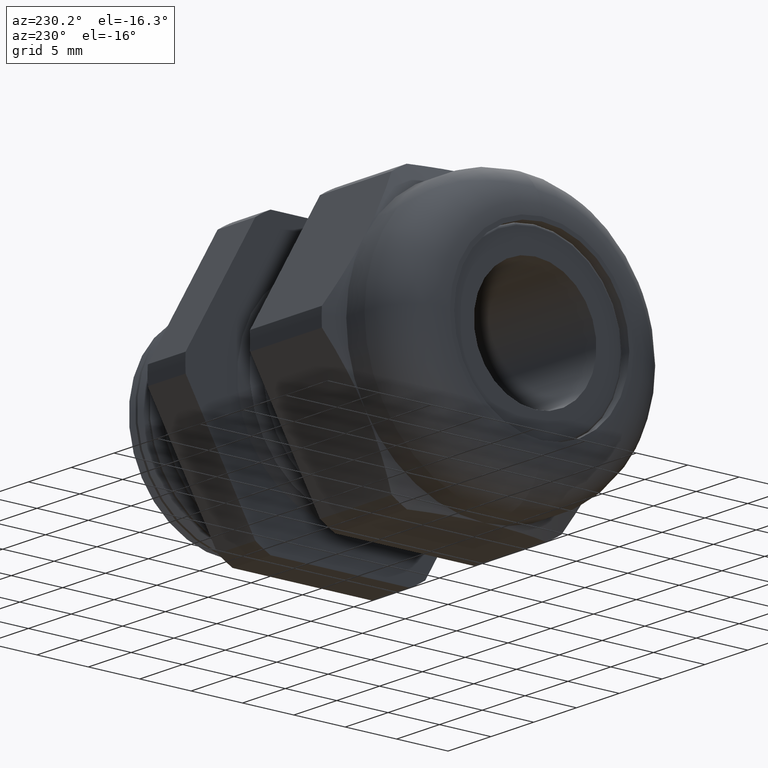
[diagram: clean part render]
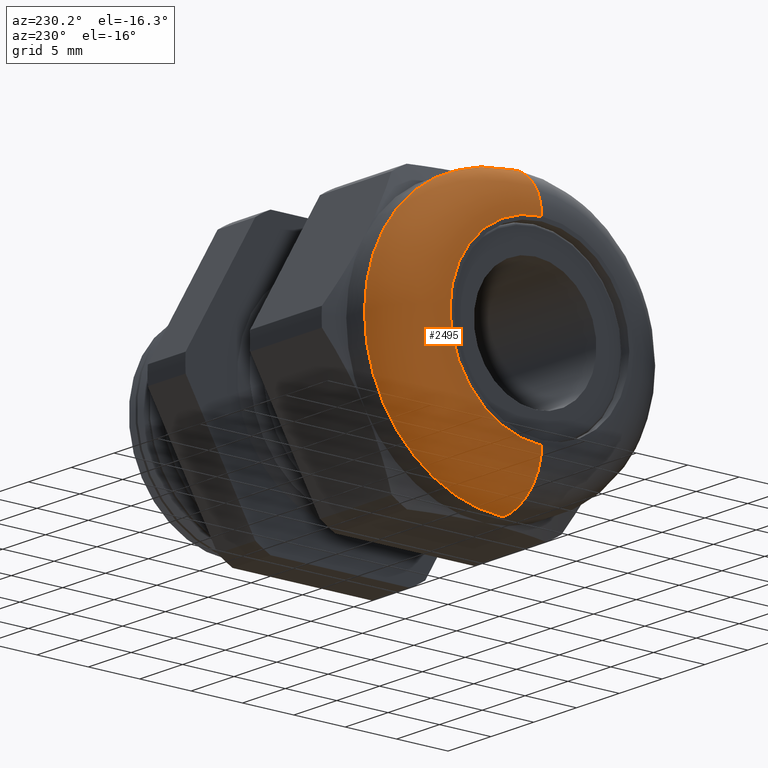
[diagram: same view with one face highlighted and labeled with its STEP entity id]
A machine part, auxiliary view. The second image highlights one B-rep face of the part: STEP entity #2495.
In plain terms, the highlighted toroidal blend (fillet) surface has major radius 8.9256 mm and minor (blend) radius 4.5364 mm.
Its self-contained STEP definition (entity closure, byte-faithful):
#838 = CARTESIAN_POINT ( 'NONE',  ( -1.100000000000000100, 0.0000000000000000000, 0.0000000000000000000 ) ) ;
#839 = CARTESIAN_POINT ( 'NONE',  ( -1.100000000000000100, 5.397018443842380300E-017, 0.3513999999999995500 ) ) ;
#847 = CARTESIAN_POINT ( 'NONE',  ( -0.9214000000000000000, 0.0000000000000000000, 0.5299999999999996900 ) ) ;
#848 = DIRECTION ( 'NONE',  ( 0.0000000000000000000, 0.0000000000000000000, -1.000000000000000000 ) ) ;
#849 = DIRECTION ( 'NONE',  ( 1.000000000000000000, 0.0000000000000000000, 0.0000000000000000000 ) ) ;
#850 = CARTESIAN_POINT ( 'NONE',  ( -0.9214000000000000000, 0.0000000000000000000, 0.0000000000000000000 ) ) ;
#851 = AXIS2_PLACEMENT_3D ( 'NONE', #850, #849, #848 ) ;
#852 = CIRCLE ( 'NONE', #851, 0.5299999999999996900 ) ;
#853 = DIRECTION ( 'NONE',  ( 0.0000000000000000000, 1.224646799147353000E-016, 1.000000000000000000 ) ) ;
#854 = DIRECTION ( 'NONE',  ( 0.0000000000000000000, 1.000000000000000000, -1.224646799147353200E-016 ) ) ;
#855 = CARTESIAN_POINT ( 'NONE',  ( -0.9214000000000000000, 4.303408852203793700E-017, 0.3513999999999995500 ) ) ;
#856 = AXIS2_PLACEMENT_3D ( 'NONE', #855, #854, #853 ) ;
#857 = CIRCLE ( 'NONE', #856, 0.1786000000000001200 ) ;
#858 = CARTESIAN_POINT ( 'NONE',  ( -0.9214000000000000000, 6.490628035480968700E-017, -0.5299999999999996900 ) ) ;
#859 = CARTESIAN_POINT ( 'NONE',  ( -1.100000000000000100, 0.0000000000000000000, -0.3513999999999995500 ) ) ;
#895 = DIRECTION ( 'NONE',  ( 0.0000000000000000000, 0.0000000000000000000, -1.000000000000000000 ) ) ;
#896 = DIRECTION ( 'NONE',  ( -1.000000000000000000, 0.0000000000000000000, 0.0000000000000000000 ) ) ;
#897 = AXIS2_PLACEMENT_3D ( 'NONE', #838, #896, #895 ) ;
#898 = CIRCLE ( 'NONE', #897, 0.3513999999999995500 ) ;
#924 = DIRECTION ( 'NONE',  ( 0.0000000000000000000, 0.0000000000000000000, -1.000000000000000000 ) ) ;
#925 = DIRECTION ( 'NONE',  ( 1.000000000000000000, 0.0000000000000000000, 0.0000000000000000000 ) ) ;
#926 = CARTESIAN_POINT ( 'NONE',  ( -0.9214000000000000000, 0.0000000000000000000, 0.0000000000000000000 ) ) ;
#927 = AXIS2_PLACEMENT_3D ( 'NONE', #926, #925, #924 ) ;
#928 = TOROIDAL_SURFACE ( 'NONE', #927, 0.3513999999999995500, 0.1786000000000001200 ) ;
#929 = FACE_OUTER_BOUND ( 'NONE', #2470, .T. ) ;
#1508 = DIRECTION ( 'NONE',  ( 0.0000000000000000000, 0.0000000000000000000, -1.000000000000000000 ) ) ;
#1509 = DIRECTION ( 'NONE',  ( 0.0000000000000000000, -1.000000000000000000, 0.0000000000000000000 ) ) ;
#1510 = CARTESIAN_POINT ( 'NONE',  ( -0.9214000000000000000, 0.0000000000000000000, -0.3513999999999995500 ) ) ;
#1511 = AXIS2_PLACEMENT_3D ( 'NONE', #1510, #1509, #1508 ) ;
#1512 = CIRCLE ( 'NONE', #1511, 0.1786000000000001200 ) ;
#2458 = ORIENTED_EDGE ( 'NONE', *, *, #2462, .T. ) ;
#2459 = VERTEX_POINT ( 'NONE', #859 ) ;
#2460 = ORIENTED_EDGE ( 'NONE', *, *, #2463, .F. ) ;
#2461 = VERTEX_POINT ( 'NONE', #858 ) ;
#2462 = EDGE_CURVE ( 'NONE', #2473, #2464, #857, .T. ) ;
#2463 = EDGE_CURVE ( 'NONE', #2461, #2464, #852, .T. ) ;
#2464 = VERTEX_POINT ( 'NONE', #847 ) ;
#2470 = EDGE_LOOP ( 'NONE', ( #2479, #2458, #2460, #2656 ) ) ;
#2473 = VERTEX_POINT ( 'NONE', #839 ) ;
#2479 = ORIENTED_EDGE ( 'NONE', *, *, #2480, .F. ) ;
#2480 = EDGE_CURVE ( 'NONE', #2473, #2459, #898, .T. ) ;
#2495 = ADVANCED_FACE ( 'NONE', ( #929 ), #928, .T. ) ;
#2656 = ORIENTED_EDGE ( 'NONE', *, *, #2835, .F. ) ;
#2835 = EDGE_CURVE ( 'NONE', #2459, #2461, #1512, .T. ) ;